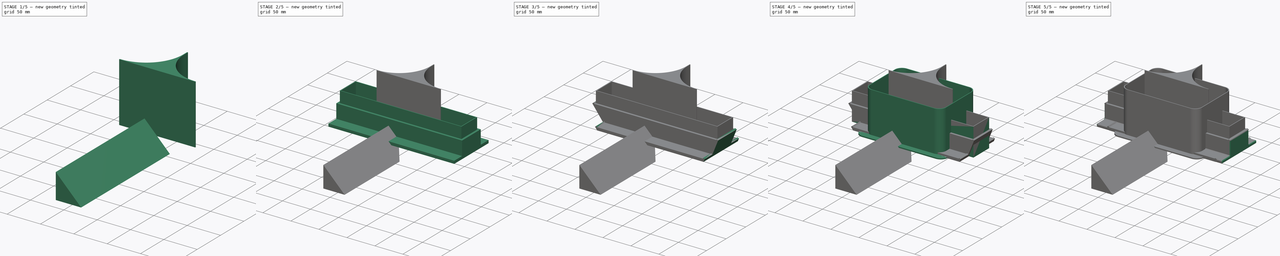
[diagram: build sequence overview — one tinted view per stage of 5, left to right]
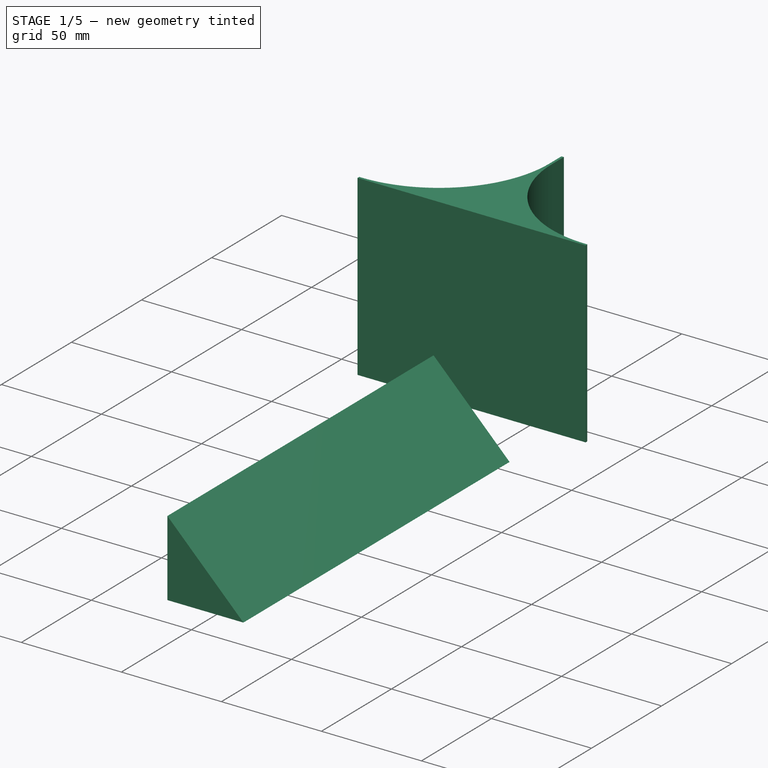
[diagram: stage 1 of 5 — iso view after this stage's code; geometry added in this stage tinted green]
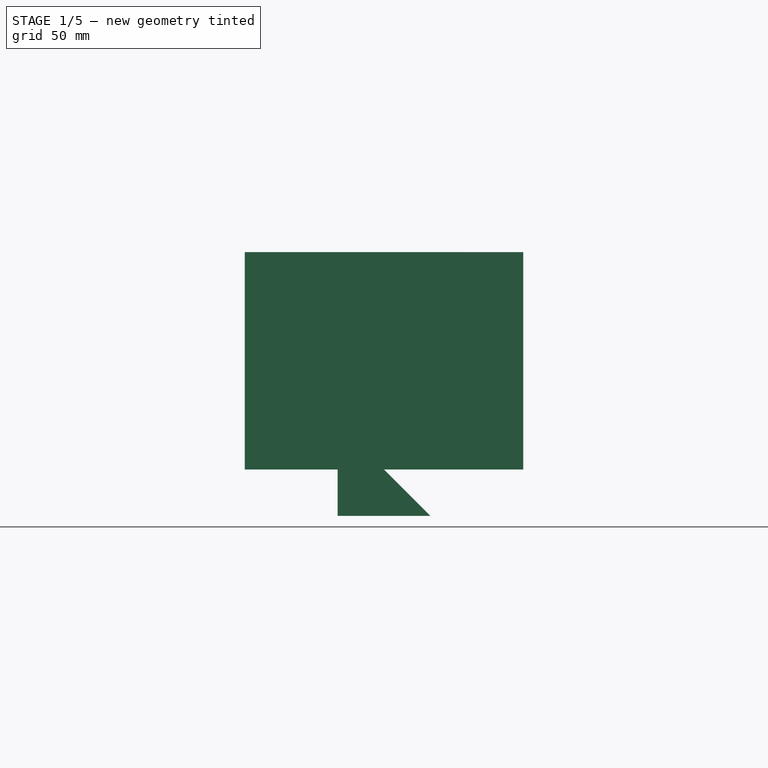
[diagram: stage 1 of 5 — front view after this stage's code; geometry added in this stage tinted green]
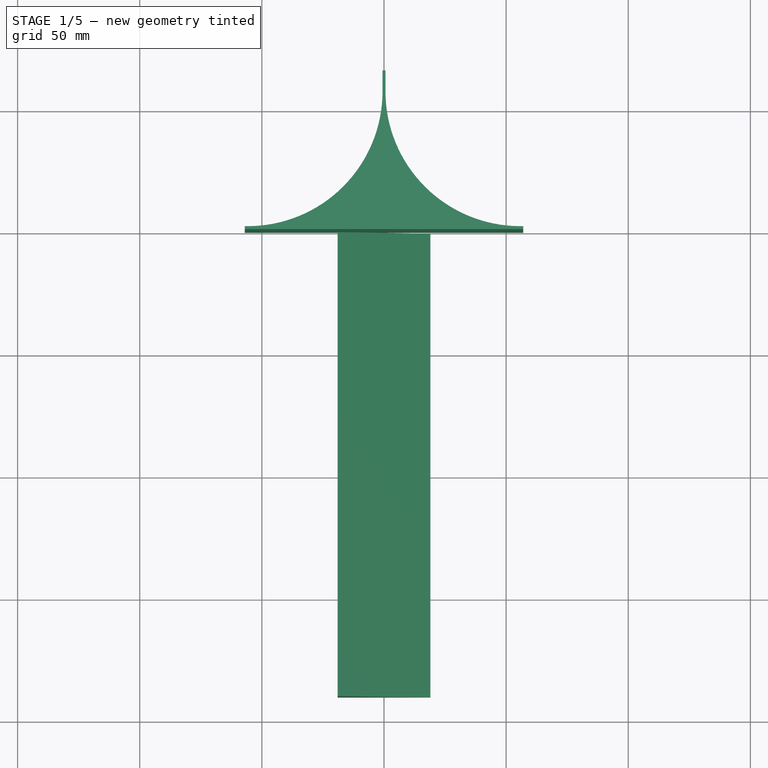
[diagram: stage 1 of 5 — top view after this stage's code; geometry added in this stage tinted green]
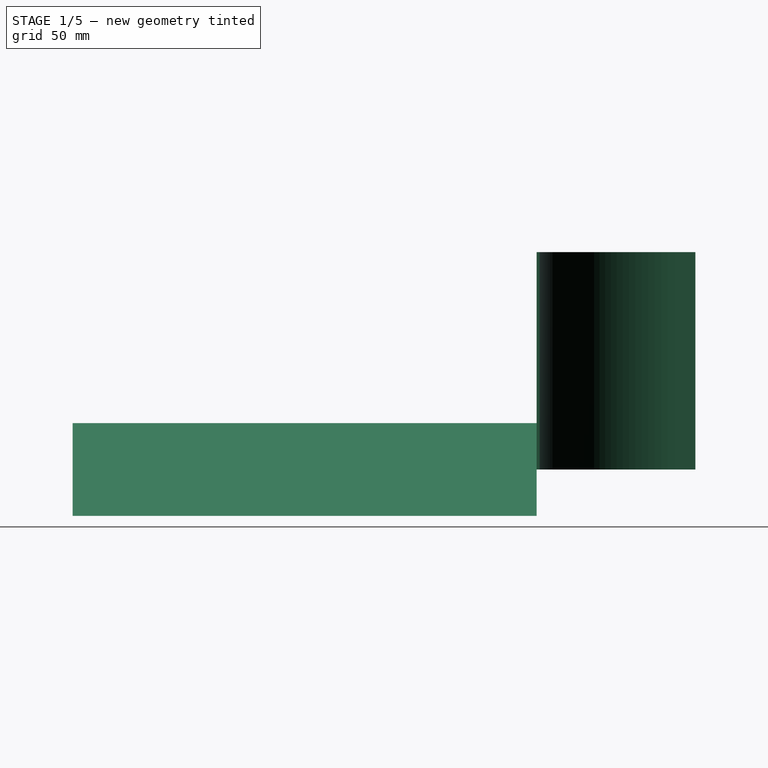
[diagram: stage 1 of 5 — right view after this stage's code; geometry added in this stage tinted green]
FCSTD DOCUMENT  (FreeCAD 0.20R29603 (Git))
Label: duct fix
License: All rights reserved
LicenseURL: http://en.wikipedia.org/wiki/All_rights_reserved
objects: Sketcher::SketchObject×15, PartDesign::Pad×12, PartDesign::Body×5, PartDesign::Pocket×3, Spreadsheet::Sheet×2, PartDesign::Chamfer×1, PartDesign::Mirrored×1
note: 53 computed .brp shape members not serialized (recipe doc carries the construction recipe); baked Part::Feature solids carry a one-line shape summary decoded from their .brp

FEATURE [PartDesign::Body] Body002  label="vent shoe001"
  Group = -> [Sketch008,Pad006,Sketch009,Pad007,Sketch010,Pad008,Sketch011,Pocket001,Sketch012,Pad009,Sketch013,Pad010]
  Origin = -> Origin002
  Tip = -> Pad010
FEATURE [Sketcher::SketchObject] Sketch014
  FullyConstrained = true
  MapMode = 5
  Support = -> [XY_Plane003]
  expr: Constraints[17] = <<f>>.wall
  expr: Constraints[2] = <<f>>.wall
  expr: Constraints[3] = <<f>>.wall / 2
  sketch-geometry (7):
    g0: LineSegment StartX=-57 StartY=0 StartZ=0 EndX=-57 EndY=1.2 EndZ=0
    g1: LineSegment StartX=-0.6 StartY=65 StartZ=0 EndX=-0.6 EndY=56.4 EndZ=0
    g2: LineSegment StartX=0 StartY=65 StartZ=0 EndX=0 EndY=0 EndZ=0
    g3: LineSegment StartX=0 StartY=0 StartZ=0 EndX=-57 EndY=0 EndZ=0
    g4: LineSegment StartX=0 StartY=65 StartZ=0 EndX=-0.6 EndY=65 EndZ=0
    g5: LineSegment StartX=-57 StartY=1.2 StartZ=0 EndX=-55.8 EndY=1.2 EndZ=0
    g6: ArcOfCircle CenterX=-55.8 CenterY=56.4 CenterZ=0 NormalX=0 NormalY=0 NormalZ=1 AngleXU=0 Radius=55.2 StartAngle=4.71239 EndAngle=6.28319
  constraints (20):
    c: Vertical(g0)
    c: PointOnObject(g2,g-2)
    c: DistanceY(g0,g0) = 1.2
    c: DistanceX(g1,g-1) = 0.6
    c: Vertical(g2)
    c: Coincident(g3,g2)
    c: Coincident(g3,g0)
    c: Horizontal(g3)
    c: DistanceY(g2,g2) = 65
    c: DistanceX(g3,g3) = 57
    c: Vertical(g1)
    c: Coincident(g4,g2)
    c: Coincident(g4,g1)
    c: Horizontal(g4)
    c: PointOnObject(g2,g-1)
    c: Coincident(g5,g0)
    c: Horizontal(g5)
    c: DistanceX(g5,g5) = 1.2
    c: Tangent(g6,g5) = -1.5708
    c: Tangent(g6,g1) = 1.5708
FEATURE [Sketcher::SketchObject] Sketch015
  AttachmentOffset = pos=(0,0,0) rot=(1,0,0;1.5708rad)
  FullyConstrained = true
  MapMode = 5
  Placement = pos=(0,0,0) rot=(1,0,0;1.5708rad)
  Support = -> [XY_Plane004]
  sketch-geometry (3):
    g0: LineSegment StartX=-19 StartY=-19 StartZ=0 EndX=19 EndY=-19 EndZ=0
    g1: LineSegment StartX=19 StartY=-19 StartZ=0 EndX=-19 EndY=19 EndZ=0
    g2: LineSegment StartX=-19 StartY=19 StartZ=0 EndX=-19 EndY=-19 EndZ=0
  constraints (8):
    c: Horizontal(g0)
    c: Coincident(g0,g1)
    c: Coincident(g1,g2)
    c: Coincident(g2,g0)
    c: Vertical(g2)
    c: DistanceY(g2,g2) = 38
    c: Equal(g2,g0)
    c: Symmetric(g1,g0,g-1)
FEATURE [PartDesign::Pad] Pad012
  Direction = (0,-1,2e-16)
  Length = 190
  Length2 = 10
  Profile = -> Sketch015
  ReferenceAxis = -> Sketch015 [N_Axis]
  Type = 0
FEATURE [PartDesign::Body] Body004  label="duct ramp"
  Group = -> [Sketch015,Pad012,Sketch016,Pocket002]
  Origin = -> Origin004
  Tip = -> Pocket002
FEATURE [PartDesign::Pad] Pad013
  Direction = (0,0,1)
  Length = 89
  Length2 = 10
  Profile = -> Sketch014
  ReferenceAxis = -> Sketch014 [N_Axis]
  Type = 0
FEATURE [PartDesign::Mirrored] Mirrored
  BaseFeature = -> Pad013
  MirrorPlane = -> Sketch014 [V_Axis]
  Originals = -> [Pad013]
  Refine = true
FEATURE [PartDesign::Body] Body003  label="air splitter"
  Group = -> [Sketch014,Pad013,Mirrored]
  Origin = -> Origin003
  Tip = -> Mirrored
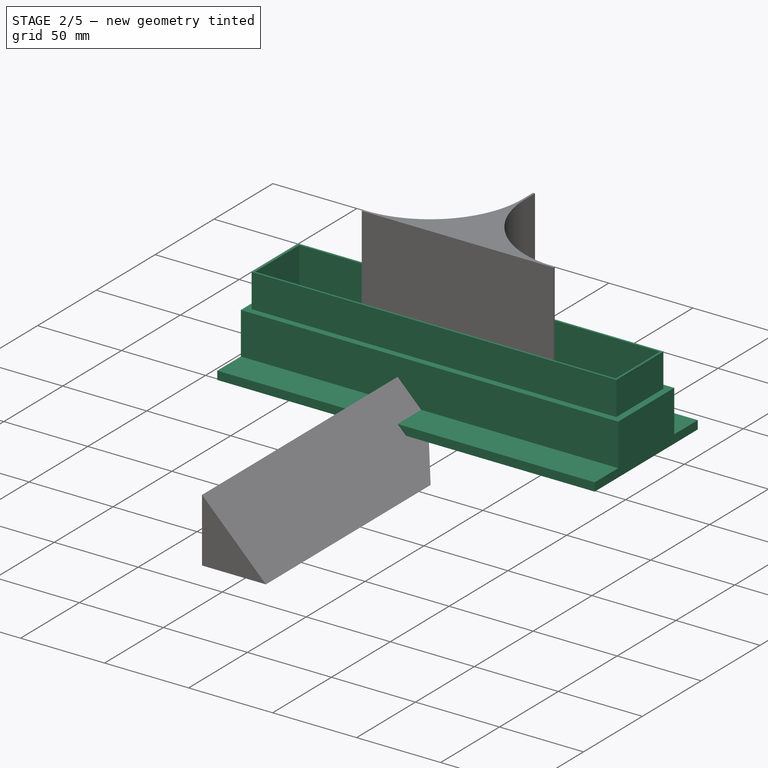
[diagram: stage 2 of 5 — iso view after this stage's code; geometry added in this stage tinted green]
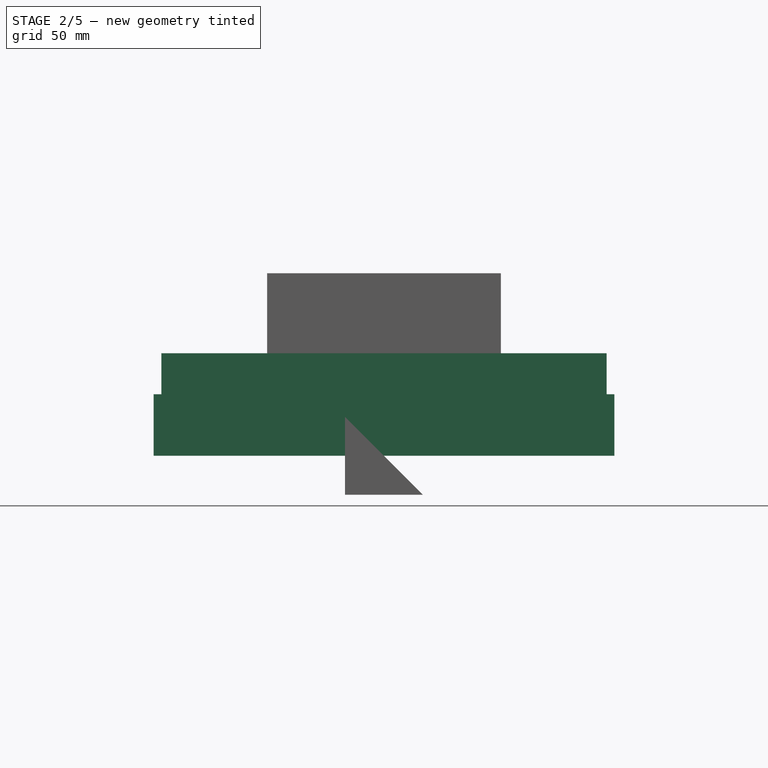
[diagram: stage 2 of 5 — front view after this stage's code; geometry added in this stage tinted green]
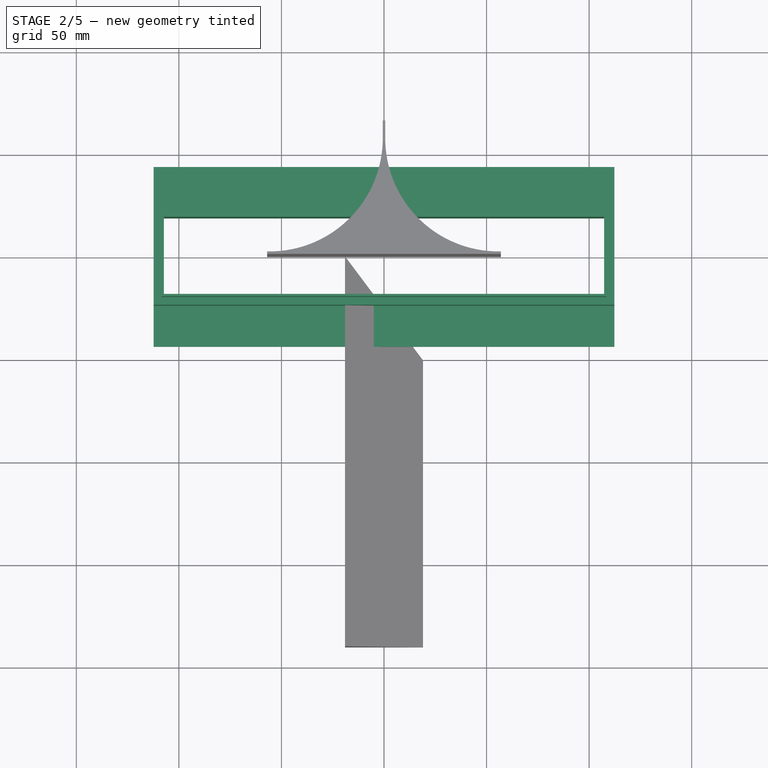
[diagram: stage 2 of 5 — top view after this stage's code; geometry added in this stage tinted green]
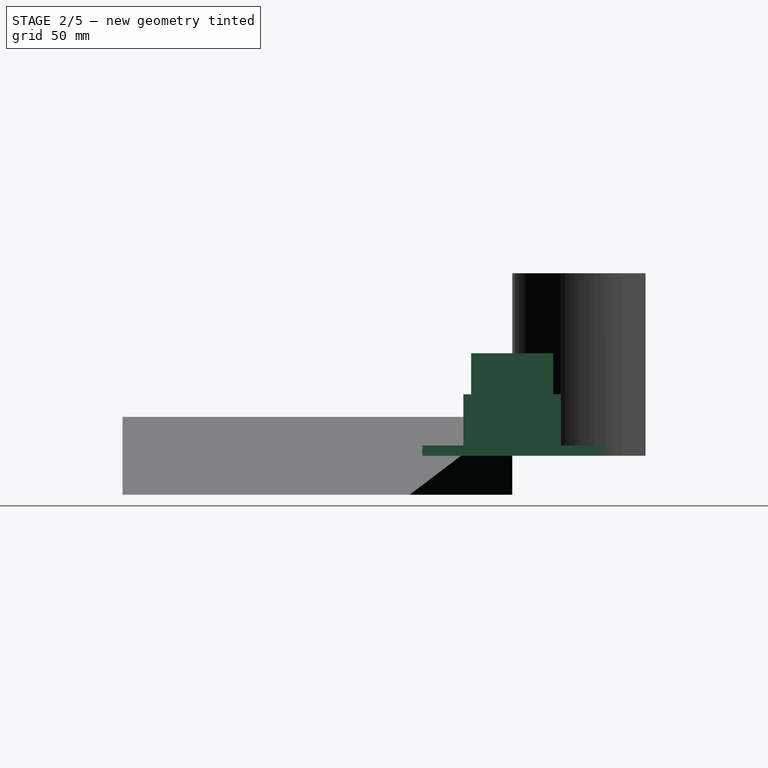
[diagram: stage 2 of 5 — right view after this stage's code; geometry added in this stage tinted green]
FEATURE [PartDesign::Body] Body  label="fan shoe"
  Group = -> [Sketch,Pad,Sketch006,Pad005,Sketch007,Pocket]
  Origin = -> Origin
  Tip = -> Pocket
FEATURE [Sketcher::SketchObject] Sketch008
  FullyConstrained = true
  MapMode = 5
  Support = -> [XY_Plane002]
  expr: Constraints[20] = <<v>>.inset
  expr: Constraints[21] = <<v>>.inset
  expr: Constraints[8] = <<v>>.inner_wide
  expr: Constraints[9] = <<v>>.inner_high
  sketch-geometry (8):
    g0: LineSegment StartX=-108.5 StartY=20 StartZ=0 EndX=108.5 EndY=20 EndZ=0
    g1: LineSegment StartX=108.5 StartY=20 StartZ=0 EndX=108.5 EndY=-20 EndZ=0
    g2: LineSegment StartX=108.5 StartY=-20 StartZ=0 EndX=-108.5 EndY=-20 EndZ=0
    g3: LineSegment StartX=-108.5 StartY=-20 StartZ=0 EndX=-108.5 EndY=20 EndZ=0
    g4: LineSegment StartX=-107.3 StartY=18.8 StartZ=0 EndX=107.3 EndY=18.8 EndZ=0
    g5: LineSegment StartX=107.3 StartY=18.8 StartZ=0 EndX=107.3 EndY=-18.8 EndZ=0
    g6: LineSegment StartX=107.3 StartY=-18.8 StartZ=0 EndX=-107.3 EndY=-18.8 EndZ=0
    g7: LineSegment StartX=-107.3 StartY=-18.8 StartZ=0 EndX=-107.3 EndY=18.8 EndZ=0
  constraints (22):
    c: Coincident(g0,g1)
    c: Coincident(g1,g2)
    c: Coincident(g2,g3)
    c: Coincident(g3,g0)
    c: Horizontal(g0)
    c: Horizontal(g2)
    c: Vertical(g1)
    c: Vertical(g3)
    c: DistanceX(g0,g0) = 217
    c: DistanceY(g1,g1) = 40
    c: Symmetric(g2,g0,g-1)
    c: Coincident(g4,g5)
    c: Coincident(g5,g6)
    c: Coincident(g6,g7)
    c: Coincident(g7,g4)
    c: Horizontal(g4)
    c: Horizontal(g6)
    c: Vertical(g5)
    c: Vertical(g7)
    c: Symmetric(g4,g6,g-1)
    c: DistanceY(g1,g5) = 1.2
    c: DistanceX(g5,g1) = 1.2
FEATURE [PartDesign::Pad] Pad006
  Direction = (0,0,1)
  Length = 50
  Length2 = 10
  Profile = -> Sketch008
  ReferenceAxis = -> Sketch008 [N_Axis]
  Type = 0
FEATURE [Sketcher::SketchObject] Sketch009
  ExternalGeometry = -> [Pad006]
  FullyConstrained = true
  MapMode = 5
  Support = -> [XY_Plane002]
  expr: Constraints[18] = <<v>>.wall
  expr: Constraints[19] = <<v>>.wall
  sketch-geometry (8):
    g0: LineSegment StartX=-107.3 StartY=18.8 StartZ=0 EndX=107.3 EndY=18.8 EndZ=0
    g1: LineSegment StartX=107.3 StartY=18.8 StartZ=0 EndX=107.3 EndY=-18.8 EndZ=0
    g2: LineSegment StartX=107.3 StartY=-18.8 StartZ=0 EndX=-107.3 EndY=-18.8 EndZ=0
    g3: LineSegment StartX=-107.3 StartY=-18.8 StartZ=0 EndX=-107.3 EndY=18.8 EndZ=0
    g4: LineSegment StartX=-112.3 StartY=23.8 StartZ=0 EndX=112.3 EndY=23.8 EndZ=0
    g5: LineSegment StartX=112.3 StartY=23.8 StartZ=0 EndX=112.3 EndY=-23.8 EndZ=0
    g6: LineSegment StartX=112.3 StartY=-23.8 StartZ=0 EndX=-112.3 EndY=-23.8 EndZ=0
    g7: LineSegment StartX=-112.3 StartY=-23.8 StartZ=0 EndX=-112.3 EndY=23.8 EndZ=0
  constraints (21):
    c: Coincident(g0,g1)
    c: Coincident(g1,g2)
    c: Coincident(g2,g3)
    c: Coincident(g3,g0)
    c: Horizontal(g0)
    c: Horizontal(g2)
    c: Vertical(g1)
    c: Vertical(g3)
    c: Coincident(g0,g-3)
    c: Coincident(g1,g-4)
    c: Coincident(g4,g5)
    c: Coincident(g5,g6)
    c: Coincident(g6,g7)
    c: Coincident(g7,g4)
    c: Horizontal(g4)
    c: Horizontal(g6)
    c: Vertical(g5)
    c: Vertical(g7)
    c: DistanceY(g5,g1) = 5
    c: DistanceX(g1,g5) = 5
    c: Symmetric(g4,g6,g-1)
FEATURE [PartDesign::Pad] Pad007
  BaseFeature = -> Pad006
  Direction = (0,0,1)
  Length = 30
  Length2 = 10
  Profile = -> Sketch009
  ReferenceAxis = -> Sketch009 [N_Axis]
  Type = 0
FEATURE [Sketcher::SketchObject] Sketch010
  ExternalGeometry = -> [Pad007]
  FullyConstrained = true
  MapMode = 5
  Support = -> [XY_Plane002]
  expr: Constraints[18] = <<v>>.flange
  sketch-geometry (8):
    g0: LineSegment StartX=-112.3 StartY=43.8 StartZ=0 EndX=112.3 EndY=43.8 EndZ=0
    g1: LineSegment StartX=112.3 StartY=43.8 StartZ=0 EndX=112.3 EndY=23.8 EndZ=0
    g2: LineSegment StartX=112.3 StartY=23.8 StartZ=0 EndX=-112.3 EndY=23.8 EndZ=0
    g3: LineSegment StartX=-112.3 StartY=23.8 StartZ=0 EndX=-112.3 EndY=43.8 EndZ=0
    g4: LineSegment StartX=-112.3 StartY=-23.8 StartZ=0 EndX=112.3 EndY=-23.8 EndZ=0
    g5: LineSegment StartX=112.3 StartY=-23.8 StartZ=0 EndX=112.3 EndY=-43.8 EndZ=0
    g6: LineSegment StartX=112.3 StartY=-43.8 StartZ=0 EndX=-112.3 EndY=-43.8 EndZ=0
    g7: LineSegment StartX=-112.3 StartY=-43.8 StartZ=0 EndX=-112.3 EndY=-23.8 EndZ=0
  constraints (20):
    c: Coincident(g0,g1)
    c: Coincident(g1,g2)
    c: Coincident(g2,g3)
    c: Coincident(g3,g0)
    c: Horizontal(g0)
    c: Vertical(g1)
    c: Vertical(g3)
    c: Coincident(g4,g5)
    c: Coincident(g5,g6)
    c: Coincident(g6,g7)
    c: Coincident(g7,g4)
    c: Horizontal(g6)
    c: Vertical(g5)
    c: Vertical(g7)
    c: Coincident(g4,g-4)
    c: Coincident(g-3,g1)
    c: Coincident(g4,g-4)
    c: Coincident(g2,g-3)
    c: DistanceY(g3,g3) = 20
    c: Equal(g3,g7)
FEATURE [PartDesign::Pad] Pad008
  BaseFeature = -> Pad007
  Direction = (0,0,1)
  Length = 5
  Length2 = 10
  Profile = -> Sketch010
  ReferenceAxis = -> Sketch010 [N_Axis]
  Refine = true
  Type = 0
  expr: Length = <<v>>.wall
FEATURE [Sketcher::SketchObject] Sketch016
  ExternalGeometry = -> [Sketch015]
  FullyConstrained = true
  MapMode = 5
  Support = -> [XY_Plane004]
  sketch-geometry (3):
    g0: LineSegment StartX=-19 StartY=0 StartZ=0 EndX=19 EndY=-4.4e-15 EndZ=0
    g1: LineSegment StartX=19 StartY=-4.4e-15 StartZ=0 EndX=19 EndY=-50 EndZ=0
    g2: LineSegment StartX=19 StartY=-50 StartZ=0 EndX=-19 EndY=0 EndZ=0
  constraints (7):
    c: Coincident(g-3,g0)
    c: Coincident(g0,g-3)
    c: Coincident(g0,g1)
    c: Coincident(g1,g2)
    c: Coincident(g2,g0)
    c: DistanceY(g1,g1) = 50
    c: Vertical(g1)
FEATURE [PartDesign::Pocket] Pocket002
  BaseFeature = -> Pad012
  Direction = (0,0,-1)
  Length = 5
  Length2 = 5
  Midplane = true
  Profile = -> Sketch016
  ReferenceAxis = -> Sketch016 [N_Axis]
  Type = 1
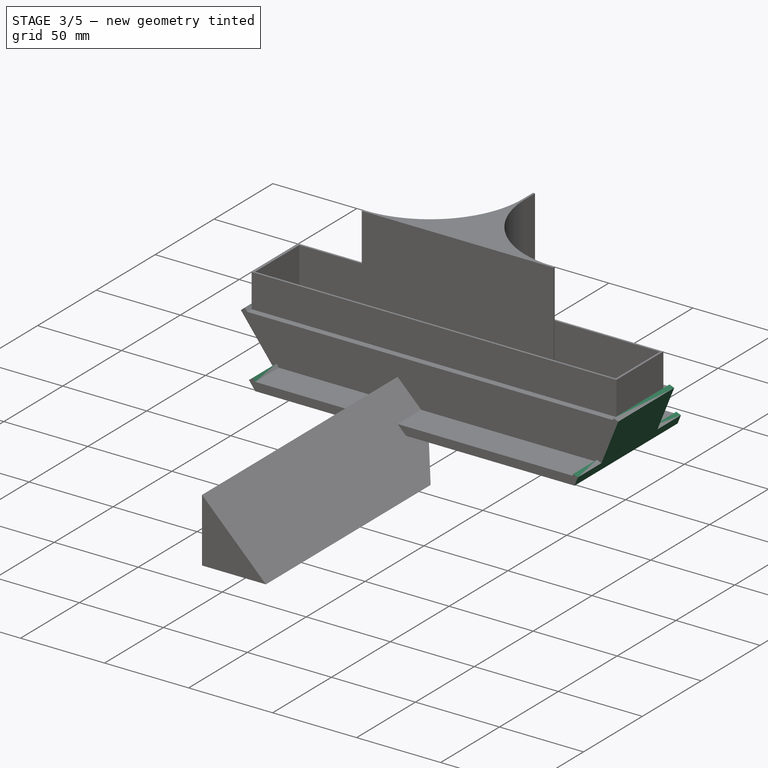
[diagram: stage 3 of 5 — iso view after this stage's code; geometry added in this stage tinted green]
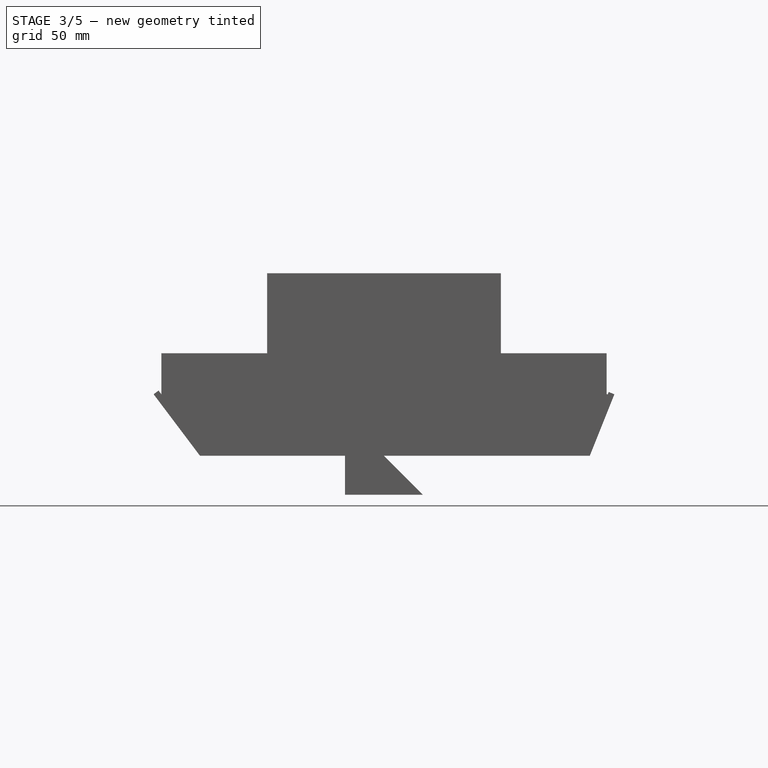
[diagram: stage 3 of 5 — front view after this stage's code; geometry added in this stage tinted green]
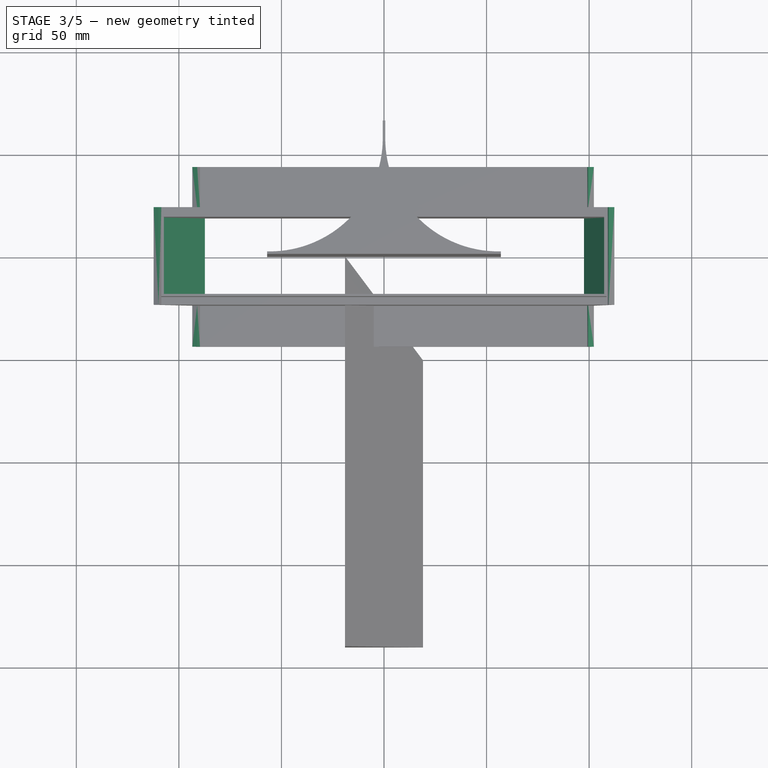
[diagram: stage 3 of 5 — top view after this stage's code; geometry added in this stage tinted green]
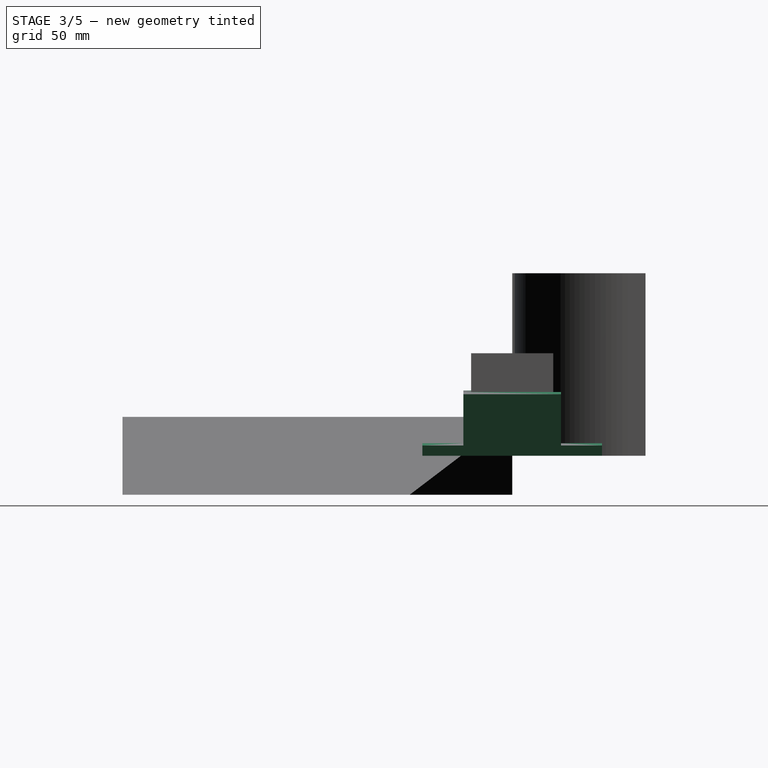
[diagram: stage 3 of 5 — right view after this stage's code; geometry added in this stage tinted green]
FEATURE [Sketcher::SketchObject] Sketch011
  ExternalGeometry = -> [Pad008]
  FullyConstrained = true
  MapMode = 5
  Placement = pos=(0,43.8,0) rot=(0,0.707107,0.707107;3.14159rad)
  Support = -> [Pad008]
  sketch-geometry (6):
    g0: LineSegment StartX=-112.3 StartY=30 StartZ=0 EndX=-100.3 EndY=0 EndZ=0
    g1: LineSegment StartX=-100.3 StartY=0 StartZ=0 EndX=-112.3 EndY=0 EndZ=0
    g2: LineSegment StartX=-112.3 StartY=0 StartZ=0 EndX=-112.3 EndY=30 EndZ=0
    g3: LineSegment StartX=112.3 StartY=30 StartZ=0 EndX=89.7 EndY=0 EndZ=0
    g4: LineSegment StartX=89.7 StartY=0 StartZ=0 EndX=112.3 EndY=0 EndZ=0
    g5: LineSegment StartX=112.3 StartY=0 StartZ=0 EndX=112.3 EndY=30 EndZ=0
  constraints (15):
    c: Coincident(g0,g-5)
    c: PointOnObject(g0,g-4)
    c: Coincident(g0,g1)
    c: Horizontal(g1)
    c: Coincident(g1,g2)
    c: Coincident(g2,g0)
    c: Vertical(g2)
    c: DistanceX(g1,g1) = 12
    c: Coincident(g-6,g3)
    c: Coincident(g3,g4)
    c: Coincident(g4,g-4)
    c: Coincident(g4,g5)
    c: Coincident(g5,g3)
    c: PointOnObject(g3,g-4)
    c: DistanceX(g0,g3) = 190
FEATURE [PartDesign::Pocket] Pocket001
  BaseFeature = -> Pad008
  Direction = (0,-1,2e-16)
  Length = 5
  Length2 = 5
  Profile = -> Sketch011
  ReferenceAxis = -> Sketch011 [N_Axis]
  Type = 1
FEATURE [Sketcher::SketchObject] Sketch012
  ExternalGeometry = -> [Pocket001]
  FullyConstrained = true
  MapMode = 5
  Placement = pos=(-57.2245,-9.3e-15,-43.1091) rot=(0.666864,-0.666864,-0.332545;2.49951rad)
  Support = -> [Pocket001]
  sketch-geometry (8):
    g0: LineSegment StartX=-43.8 StartY=60.2327 StartZ=0 EndX=-23.8 EndY=60.2327 EndZ=0
    g1: LineSegment StartX=-43.8 StartY=60.2327 StartZ=0 EndX=-43.8 EndY=53.9727 EndZ=0
    g2: LineSegment StartX=43.8 StartY=53.9727 StartZ=0 EndX=43.8 EndY=60.2327 EndZ=0
    g3: LineSegment StartX=43.8 StartY=60.2327 StartZ=0 EndX=23.8 EndY=60.2327 EndZ=0
    g4: LineSegment StartX=23.8 StartY=60.2327 StartZ=0 EndX=23.8 EndY=91.5328 EndZ=0
    g5: LineSegment StartX=23.8 StartY=91.5328 StartZ=0 EndX=-23.8 EndY=91.5328 EndZ=0
    g6: LineSegment StartX=-23.8 StartY=91.5328 StartZ=0 EndX=-23.8 EndY=60.2327 EndZ=0
    g7: LineSegment StartX=43.8 StartY=53.9727 StartZ=0 EndX=-43.8 EndY=53.9727 EndZ=0
  constraints (16):
    c: Coincident(g0,g-5)
    c: Coincident(g0,g-5)
    c: Coincident(g0,g1)
    c: Coincident(g1,g-6)
    c: Coincident(g2,g-8)
    c: Coincident(g2,g3)
    c: Coincident(g3,g-8)
    c: Coincident(g3,g4)
    c: Coincident(g4,g-3)
    c: Coincident(g4,g5)
    c: Coincident(g5,g-3)
    c: Coincident(g5,g6)
    c: Coincident(g6,g0)
    c: Coincident(g2,g-7)
    c: Coincident(g7,g2)
    c: Coincident(g7,g1)
FEATURE [PartDesign::Pad] Pad009
  BaseFeature = -> Pocket001
  Direction = (-0.79872,0,-0.601703)
  Length = 3
  Length2 = 10
  Profile = -> Sketch012
  ReferenceAxis = -> Sketch012 [N_Axis]
  Reversed = true
  Type = 0
FEATURE [Sketcher::SketchObject] Sketch013
  ExternalGeometry = -> [Pad009]
  FullyConstrained = true
  MapMode = 5
  Placement = pos=(86.4655,-7.5e-15,-34.5862) rot=(0.637788,0.637788,0.431803;2.32635rad)
  Support = -> [Pad009]
  sketch-geometry (8):
    g0: LineSegment StartX=-23.8 StartY=69.5615 StartZ=0 EndX=23.8 EndY=69.5615 EndZ=0
    g1: LineSegment StartX=23.8 StartY=69.5615 StartZ=0 EndX=23.8 EndY=42.6356 EndZ=0
    g2: LineSegment StartX=23.8 StartY=42.6356 StartZ=0 EndX=43.8 EndY=42.6356 EndZ=0
    g3: LineSegment StartX=43.8 StartY=42.6356 StartZ=0 EndX=43.8 EndY=37.2505 EndZ=0
    g4: LineSegment StartX=43.8 StartY=37.2505 StartZ=0 EndX=-43.8 EndY=37.2505 EndZ=0
    g5: LineSegment StartX=-43.8 StartY=37.2505 StartZ=0 EndX=-43.8 EndY=42.6356 EndZ=0
    g6: LineSegment StartX=-43.8 StartY=42.6356 StartZ=0 EndX=-23.8 EndY=42.6356 EndZ=0
    g7: LineSegment StartX=-23.8 StartY=42.6356 StartZ=0 EndX=-23.8 EndY=69.5615 EndZ=0
  constraints (16):
    c: Coincident(g-3,g0)
    c: Coincident(g0,g-3)
    c: Coincident(g0,g1)
    c: Coincident(g1,g-5)
    c: Coincident(g1,g2)
    c: Coincident(g2,g-5)
    c: Coincident(g2,g3)
    c: Coincident(g3,g-6)
    c: Coincident(g3,g4)
    c: Coincident(g4,g-7)
    c: Coincident(g4,g5)
    c: Coincident(g5,g-4)
    c: Coincident(g5,g6)
    c: Coincident(g6,g-4)
    c: Coincident(g6,g7)
    c: Coincident(g7,g0)
FEATURE [PartDesign::Pad] Pad010
  BaseFeature = -> Pad009
  Direction = (0.928477,-2e-16,-0.371391)
  Length = 3
  Length2 = 10
  Profile = -> Sketch013
  ReferenceAxis = -> Sketch013 [N_Axis]
  Refine = true
  Reversed = true
  Type = 0
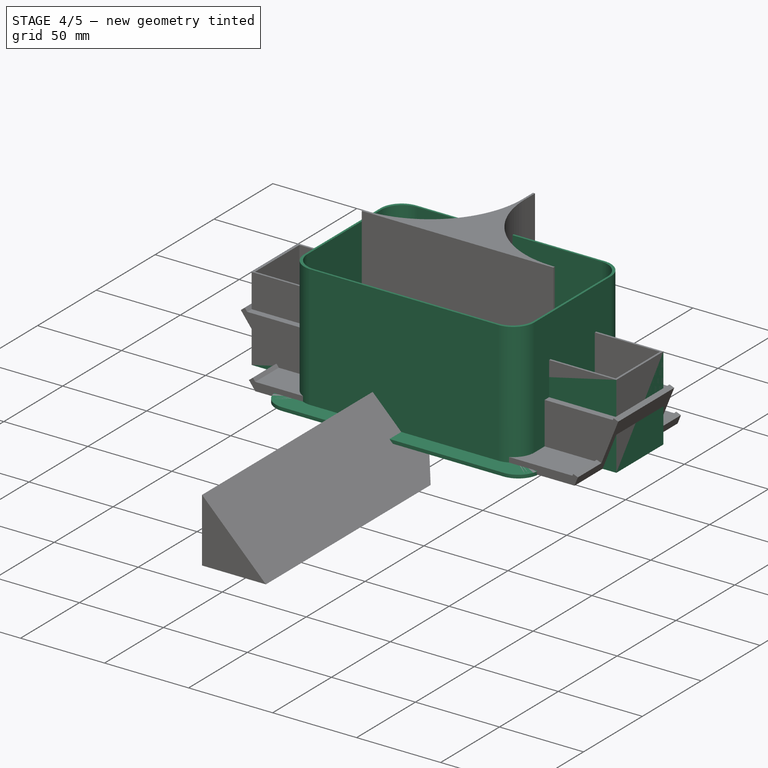
[diagram: stage 4 of 5 — iso view after this stage's code; geometry added in this stage tinted green]
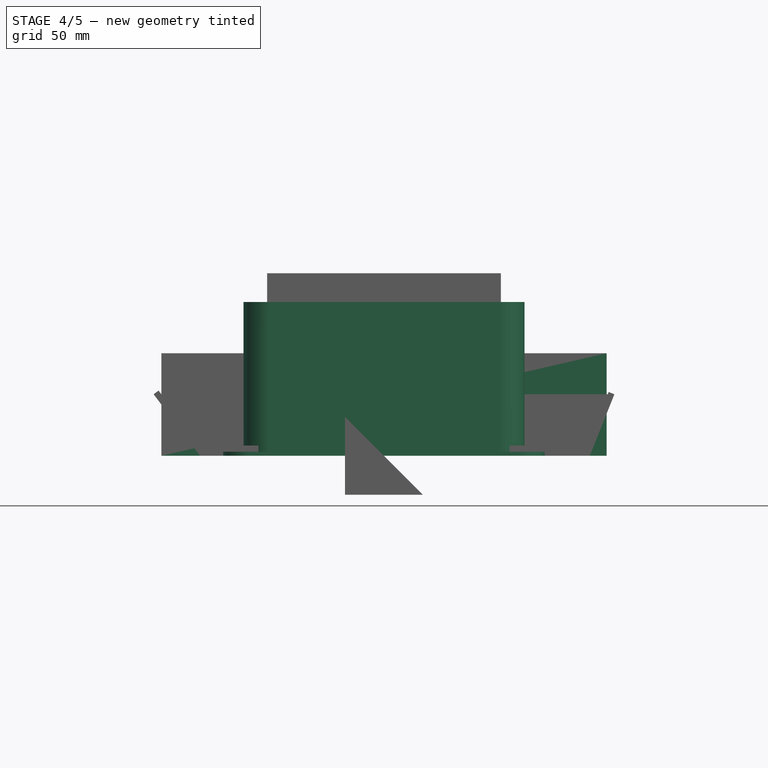
[diagram: stage 4 of 5 — front view after this stage's code; geometry added in this stage tinted green]
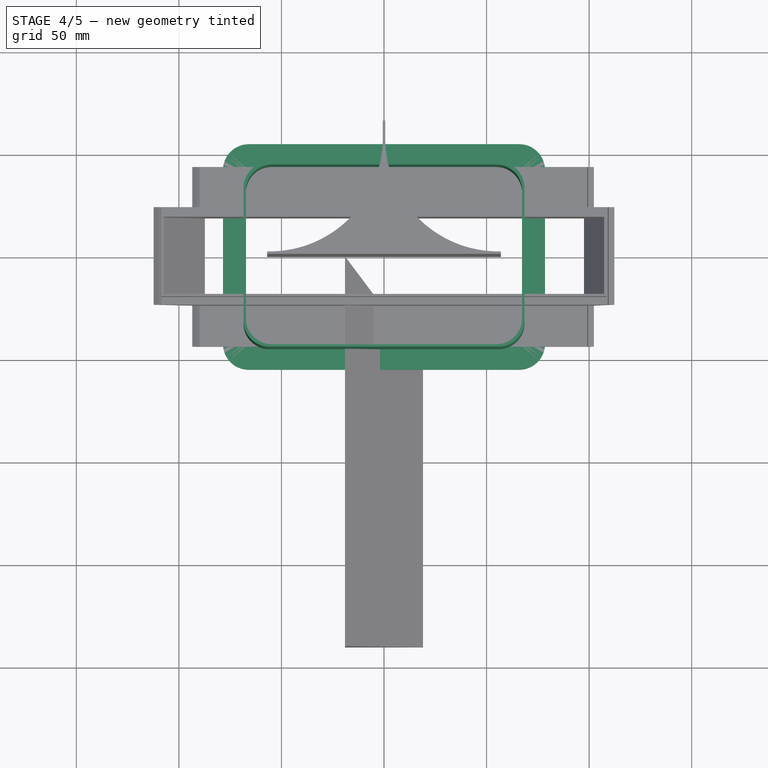
[diagram: stage 4 of 5 — top view after this stage's code; geometry added in this stage tinted green]
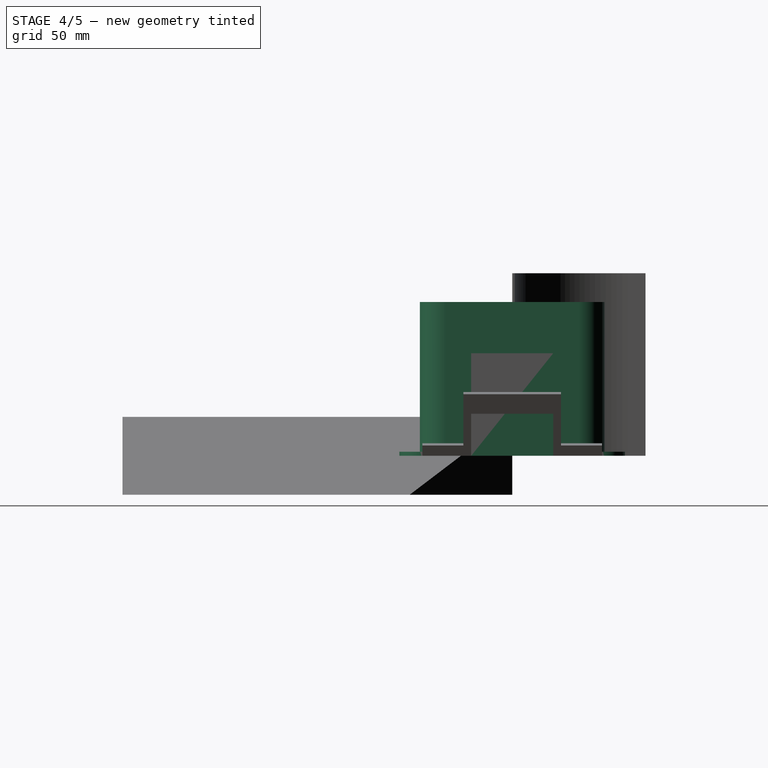
[diagram: stage 4 of 5 — right view after this stage's code; geometry added in this stage tinted green]
FEATURE [Spreadsheet::Sheet] Spreadsheet  label="v"
  cells = B2=mm; C2=input inches; A3=wall; B3(wall)=5; C3=0.125; A4=high; B4(high)==C4 * 25.4; C4=2; A5=wide; B5(wide)==C5 * 25.4; C5=9; A6=deep; B6(deep)==C6 * 25.4; C6=1; A7=flange; B7(flange)=20; C7=0.75; A9=inset; B9(inset)=1.2; A11=inner wide; B11(inner_wide)=217; A12=inner high; B12(inner_high)=40
FEATURE [Sketcher::SketchObject] Sketch003
  FullyConstrained = true
  MapMode = 5
  Support = -> [XY_Plane001]
  expr: Constraints[20] = <<v>>.inset
  expr: Constraints[21] = <<v>>.inset
  expr: Constraints[8] = <<v>>.inner_wide
  expr: Constraints[9] = <<v>>.inner_high
  sketch-geometry (8):
    g0: LineSegment StartX=-108.5 StartY=20 StartZ=0 EndX=108.5 EndY=20 EndZ=0
    g1: LineSegment StartX=108.5 StartY=20 StartZ=0 EndX=108.5 EndY=-20 EndZ=0
    g2: LineSegment StartX=108.5 StartY=-20 StartZ=0 EndX=-108.5 EndY=-20 EndZ=0
    g3: LineSegment StartX=-108.5 StartY=-20 StartZ=0 EndX=-108.5 EndY=20 EndZ=0
    g4: LineSegment StartX=-107.3 StartY=18.8 StartZ=0 EndX=107.3 EndY=18.8 EndZ=0
    g5: LineSegment StartX=107.3 StartY=18.8 StartZ=0 EndX=107.3 EndY=-18.8 EndZ=0
    g6: LineSegment StartX=107.3 StartY=-18.8 StartZ=0 EndX=-107.3 EndY=-18.8 EndZ=0
    g7: LineSegment StartX=-107.3 StartY=-18.8 StartZ=0 EndX=-107.3 EndY=18.8 EndZ=0
  constraints (22):
    c: Coincident(g0,g1)
    c: Coincident(g1,g2)
    c: Coincident(g2,g3)
    c: Coincident(g3,g0)
    c: Horizontal(g0)
    c: Horizontal(g2)
    c: Vertical(g1)
    c: Vertical(g3)
    c: DistanceX(g0,g0) = 217
    c: DistanceY(g1,g1) = 40
    c: Symmetric(g2,g0,g-1)
    c: Coincident(g4,g5)
    c: Coincident(g5,g6)
    c: Coincident(g6,g7)
    c: Coincident(g7,g4)
    c: Horizontal(g4)
    c: Horizontal(g6)
    c: Vertical(g5)
    c: Vertical(g7)
    c: Symmetric(g4,g6,g-1)
    c: DistanceY(g1,g5) = 1.2
    c: DistanceX(g5,g1) = 1.2
FEATURE [PartDesign::Pad] Pad002
  Direction = (0,0,1)
  Length = 50
  Length2 = 10
  Profile = -> Sketch003
  ReferenceAxis = -> Sketch003 [N_Axis]
  Type = 0
FEATURE [PartDesign::Body] Body001  label="vent shoe"
  Group = -> [Sketch003,Pad002,Sketch004,Pad003,Sketch005,Pad004,Chamfer]
  Origin = -> Origin001
  Tip = -> Chamfer
FEATURE [Sketcher::SketchObject] Sketch
  FullyConstrained = true
  MapMode = 5
  Support = -> [XY_Plane]
  expr: Constraints[23] = <<f>>.inner_radius
  expr: Constraints[25] = <<f>>.inner_wide
  expr: Constraints[26] = <<f>>.inner_high
  sketch-geometry (12):
    g0: LineSegment StartX=55.9 StartY=45 StartZ=0 EndX=-55.9 EndY=45 EndZ=0
    g1: LineSegment StartX=-68.5 StartY=32.4 StartZ=0 EndX=-68.5 EndY=-32.4 EndZ=0
    g2: LineSegment StartX=-55.9 StartY=-45 StartZ=0 EndX=55.9 EndY=-45 EndZ=0
    g3: LineSegment StartX=68.5 StartY=-32.4 StartZ=0 EndX=68.5 EndY=32.4 EndZ=0
    g4: ArcOfCircle CenterX=-55.9 CenterY=32.4 CenterZ=0 NormalX=0 NormalY=0 NormalZ=1 AngleXU=0 Radius=12.6 StartAngle=1.5708 EndAngle=3.14159
    g5: GeomPoint X=-68.5 Y=45 Z=0
    g6: ArcOfCircle CenterX=-55.9 CenterY=-32.4 CenterZ=0 NormalX=0 NormalY=0 NormalZ=1 AngleXU=0 Radius=12.6 StartAngle=3.14159 EndAngle=4.71239
    g7: GeomPoint X=-68.5 Y=-45 Z=0
    g8: ArcOfCircle CenterX=55.9 CenterY=-32.4 CenterZ=0 NormalX=0 NormalY=0 NormalZ=1 AngleXU=0 Radius=12.6 StartAngle=4.71239 EndAngle=6.28319
    g9: GeomPoint X=68.5 Y=-45 Z=0
    g10: ArcOfCircle CenterX=55.9 CenterY=32.4 CenterZ=0 NormalX=0 NormalY=0 NormalZ=1 AngleXU=0 Radius=12.6 StartAngle=0 EndAngle=1.5708
    g11: GeomPoint X=68.5 Y=45 Z=0
  constraints (27):
    c: Horizontal(g0)
    c: Horizontal(g2)
    c: Vertical(g1)
    c: Vertical(g3)
    c: PointOnObject(g5,g0)
    c: PointOnObject(g5,g1)
    c: Tangent(g0,g4) = -1.5708
    c: Tangent(g1,g4) = -1.5708
    c: PointOnObject(g7,g1)
    c: PointOnObject(g7,g2)
    c: Tangent(g1,g6) = -1.5708
    c: Tangent(g2,g6) = -1.5708
    c: PointOnObject(g9,g2)
    c: PointOnObject(g9,g3)
    c: Tangent(g2,g8) = -1.5708
    c: Tangent(g3,g8) = -1.5708
    c: PointOnObject(g11,g3)
    c: PointOnObject(g11,g0)
    c: Tangent(g3,g10) = -1.5708
    c: Tangent(g0,g10) = -1.5708
    c: Equal(g4,g10)
    c: Equal(g4,g8)
    c: Equal(g4,g6)
    c: Radius(g4) = 12.6
    c: Symmetric(g8,g4,g-1)
    c: DistanceX(g1,g3) = 137
    c: DistanceY(g2,g0) = 90
FEATURE [Spreadsheet::Sheet] Spreadsheet001  label="f"
  cells = A1=inner radius; B1(inner_radius)=12.6; A2=inner wide; B2(inner_wide)=137; A3=inner high; B3(inner_high)=90; A5=wall; B5(wall)=1.2; A6=height; B6(height)=75; A7=flange; B7(flange)=20; A8=flange thickness; B8(flange_thickness)=2; A10=splitter height; B10(splitter_height)=100; A11=splitter base; B11(splitter_base)=60; A12=foam thickness; B12(foam_thickness)=25.4
FEATURE [PartDesign::Pad] Pad
  Direction = (0,0,1)
  Length = 75
  Length2 = 10
  Profile = -> Sketch
  ReferenceAxis = -> Sketch [N_Axis]
  Type = 0
  expr: Length = <<f>>.height
FEATURE [Sketcher::SketchObject] Sketch006
  FullyConstrained = true
  MapMode = 5
  Support = -> [XY_Plane]
  expr: Constraints[26] = <<f>>.inner_radius
  expr: Constraints[5] = <<f>>.inner_wide + <<f>>.flange
  expr: Constraints[6] = <<f>>.inner_high + <<f>>.flange
  sketch-geometry (12):
    g0: LineSegment StartX=-65.9 StartY=55 StartZ=0 EndX=65.9 EndY=55 EndZ=0
    g1: LineSegment StartX=78.5 StartY=42.4 StartZ=0 EndX=78.5 EndY=-42.4 EndZ=0
    g2: LineSegment StartX=65.9 StartY=-55 StartZ=0 EndX=-65.9 EndY=-55 EndZ=0
    g3: LineSegment StartX=-78.5 StartY=-42.4 StartZ=0 EndX=-78.5 EndY=42.4 EndZ=0
    g4: ArcOfCircle CenterX=-65.9 CenterY=42.4 CenterZ=0 NormalX=0 NormalY=0 NormalZ=1 AngleXU=0 Radius=12.6 StartAngle=1.5708 EndAngle=3.14159
    g5: GeomPoint X=-78.5 Y=55 Z=0
    g6: ArcOfCircle CenterX=65.9 CenterY=42.4 CenterZ=0 NormalX=0 NormalY=0 NormalZ=1 AngleXU=0 Radius=12.6 StartAngle=0 EndAngle=1.5708
    g7: GeomPoint X=78.5 Y=55 Z=0
    g8: ArcOfCircle CenterX=-65.9 CenterY=-42.4 CenterZ=0 NormalX=0 NormalY=0 NormalZ=1 AngleXU=0 Radius=12.6 StartAngle=3.14159 EndAngle=4.71239
    g9: GeomPoint X=-78.5 Y=-55 Z=0
    g10: ArcOfCircle CenterX=65.9 CenterY=-42.4 CenterZ=0 NormalX=0 NormalY=0 NormalZ=1 AngleXU=0 Radius=12.6 StartAngle=4.71239 EndAngle=6.28319
    g11: GeomPoint X=78.5 Y=-55 Z=0
  constraints (27):
    c: Horizontal(g0)
    c: Horizontal(g2)
    c: Vertical(g1)
    c: Vertical(g3)
    c: Symmetric(g9,g7,g-1)
    c: DistanceX(g5,g7) = 157
    c: DistanceY(g11,g7) = 110
    c: PointOnObject(g5,g0)
    c: PointOnObject(g5,g3)
    c: Tangent(g0,g4) = 1.5708
    c: Tangent(g3,g4) = 1.5708
    c: PointOnObject(g7,g0)
    c: PointOnObject(g7,g1)
    c: Tangent(g0,g6) = 1.5708
    c: Tangent(g1,g6) = 1.5708
    c: PointOnObject(g9,g2)
    c: PointOnObject(g9,g3)
    c: Tangent(g2,g8) = 1.5708
    c: Tangent(g3,g8) = 1.5708
    c: PointOnObject(g11,g2)
    c: PointOnObject(g11,g1)
    c: Tangent(g2,g10) = 1.5708
    c: Tangent(g1,g10) = 1.5708
    c: Equal(g6,g10)
    c: Equal(g6,g8)
    c: Equal(g6,g4)
    c: Radius(g6) = 12.6
FEATURE [PartDesign::Pad] Pad005
  BaseFeature = -> Pad
  Direction = (0,0,1)
  Length = 2
  Length2 = 10
  Profile = -> Sketch006
  ReferenceAxis = -> Sketch006 [N_Axis]
  Type = 0
  expr: Length = <<f>>.flange_thickness
FEATURE [Sketcher::SketchObject] Sketch007
  FullyConstrained = true
  MapMode = 5
  Support = -> [XY_Plane]
  expr: Constraints[20] = <<f>>.inner_high - 2 * Spreadsheet001.wall
  expr: Constraints[21] = <<f>>.inner_wide - 2 * Spreadsheet001.wall
  expr: Constraints[25] = <<f>>.inner_radius
  sketch-geometry (12):
    g0: LineSegment StartX=-54.7 StartY=43.8 StartZ=0 EndX=54.7 EndY=43.8 EndZ=0
    g1: LineSegment StartX=67.3 StartY=31.2 StartZ=0 EndX=67.3 EndY=-31.2 EndZ=0
    g2: LineSegment StartX=54.7 StartY=-43.8 StartZ=0 EndX=-54.7 EndY=-43.8 EndZ=0
    g3: LineSegment StartX=-67.3 StartY=-31.2 StartZ=0 EndX=-67.3 EndY=31.2 EndZ=0
    g4: ArcOfCircle CenterX=-54.7 CenterY=31.2 CenterZ=0 NormalX=0 NormalY=0 NormalZ=1 AngleXU=0 Radius=12.6 StartAngle=1.5708 EndAngle=3.14159
    g5: GeomPoint X=-67.3 Y=43.8 Z=0
    g6: ArcOfCircle CenterX=54.7 CenterY=-31.2 CenterZ=0 NormalX=0 NormalY=0 NormalZ=1 AngleXU=0 Radius=12.6 StartAngle=4.71239 EndAngle=6.28319
    g7: GeomPoint X=67.3 Y=-43.8 Z=0
    g8: ArcOfCircle CenterX=54.7 CenterY=31.2 CenterZ=0 NormalX=0 NormalY=0 NormalZ=1 AngleXU=0 Radius=12.6 StartAngle=-9e-16 EndAngle=1.5708
    g9: GeomPoint X=67.3 Y=43.8 Z=0
    g10: ArcOfCircle CenterX=-54.7 CenterY=-31.2 CenterZ=0 NormalX=0 NormalY=0 NormalZ=1 AngleXU=0 Radius=12.6 StartAngle=3.14159 EndAngle=4.71239
    g11: GeomPoint X=-67.3 Y=-43.8 Z=0
  constraints (27):
    c: Horizontal(g0)
    c: Horizontal(g2)
    c: Vertical(g1)
    c: Vertical(g3)
    c: PointOnObject(g5,g3)
    c: PointOnObject(g5,g0)
    c: Tangent(g3,g4) = 1.5708
    c: Tangent(g0,g4) = 1.5708
    c: PointOnObject(g7,g1)
    c: PointOnObject(g7,g2)
    c: Tangent(g1,g6) = 1.5708
    c: Tangent(g2,g6) = 1.5708
    c: PointOnObject(g9,g0)
    c: PointOnObject(g9,g1)
    c: Tangent(g0,g8) = 1.5708
    c: Tangent(g1,g8) = 1.5708
    c: PointOnObject(g11,g2)
    c: PointOnObject(g11,g3)
    c: Tangent(g2,g10) = 1.5708
    c: Tangent(g3,g10) = 1.5708
    c: DistanceY(g2,g0) = 87.6
    c: DistanceX(g3,g1) = 134.6
    c: Equal(g6,g8)
    c: Equal(g6,g4)
    c: Equal(g6,g10)
    c: Radius(g6) = 12.6
    c: Symmetric(g8,g10,g-1)
FEATURE [PartDesign::Pocket] Pocket
  BaseFeature = -> Pad005
  Direction = (0,0,-1)
  Length = 5
  Length2 = 5
  Profile = -> Sketch007
  ReferenceAxis = -> Sketch007 [N_Axis]
  Reversed = true
  Type = 1
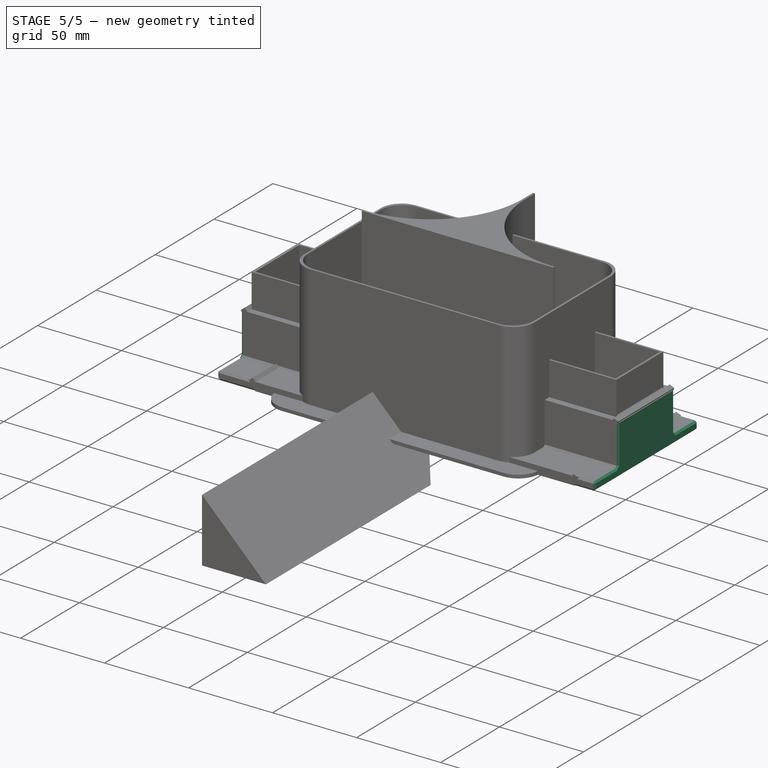
[diagram: stage 5 of 5 — iso view after this stage's code; geometry added in this stage tinted green]
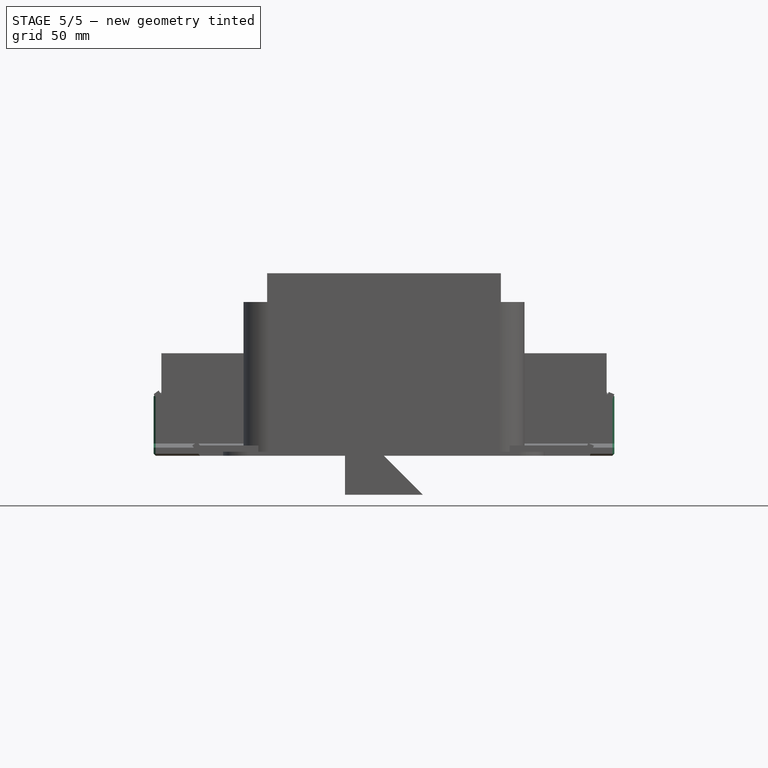
[diagram: stage 5 of 5 — front view after this stage's code; geometry added in this stage tinted green]
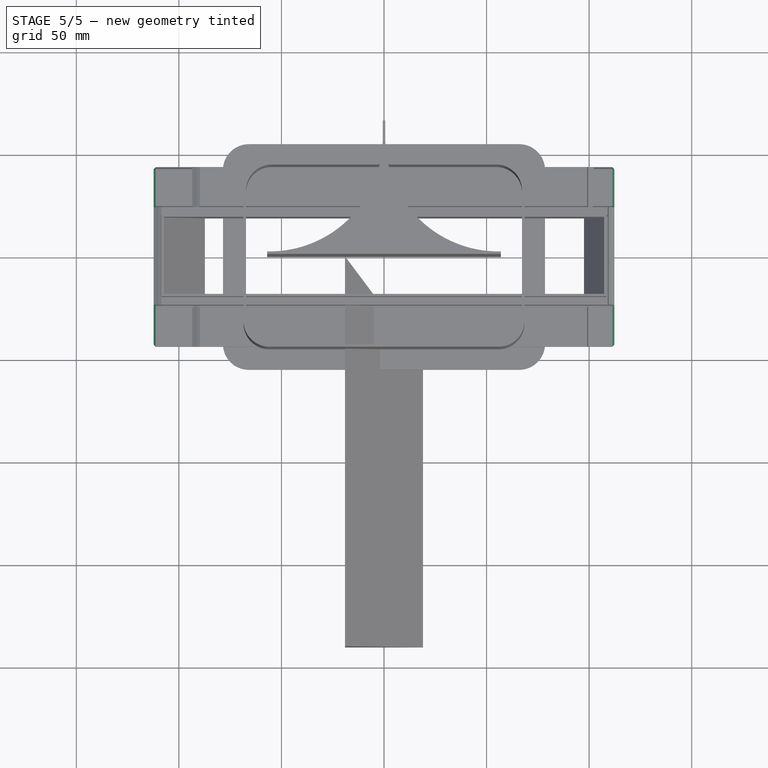
[diagram: stage 5 of 5 — top view after this stage's code; geometry added in this stage tinted green]
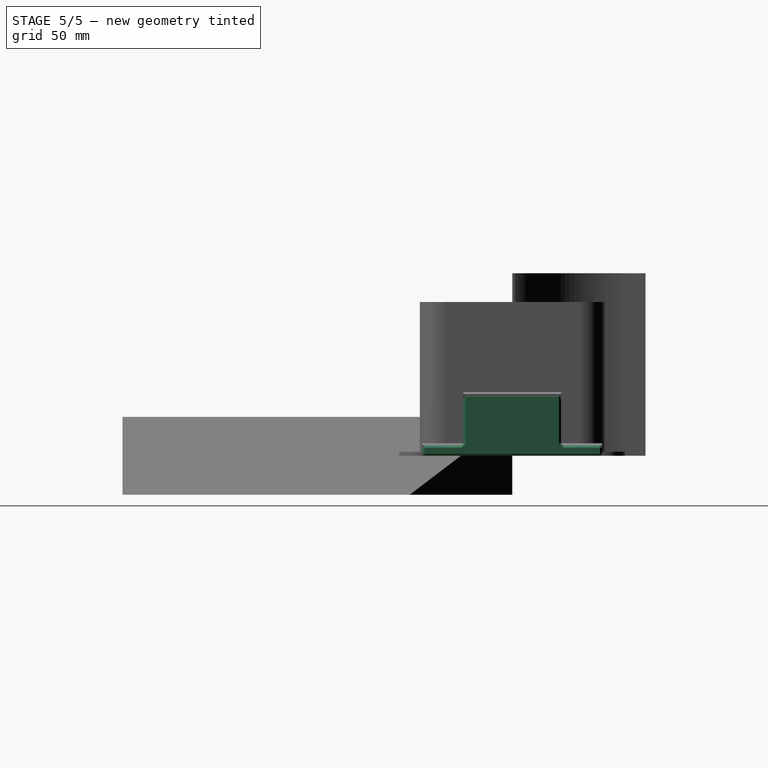
[diagram: stage 5 of 5 — right view after this stage's code; geometry added in this stage tinted green]
FEATURE [Sketcher::SketchObject] Sketch004
  ExternalGeometry = -> [Pad002]
  FullyConstrained = true
  MapMode = 5
  Support = -> [XY_Plane001]
  expr: Constraints[18] = <<v>>.wall
  expr: Constraints[19] = <<v>>.wall
  sketch-geometry (8):
    g0: LineSegment StartX=-107.3 StartY=18.8 StartZ=0 EndX=107.3 EndY=18.8 EndZ=0
    g1: LineSegment StartX=107.3 StartY=18.8 StartZ=0 EndX=107.3 EndY=-18.8 EndZ=0
    g2: LineSegment StartX=107.3 StartY=-18.8 StartZ=0 EndX=-107.3 EndY=-18.8 EndZ=0
    g3: LineSegment StartX=-107.3 StartY=-18.8 StartZ=0 EndX=-107.3 EndY=18.8 EndZ=0
    g4: LineSegment StartX=-112.3 StartY=23.8 StartZ=0 EndX=112.3 EndY=23.8 EndZ=0
    g5: LineSegment StartX=112.3 StartY=23.8 StartZ=0 EndX=112.3 EndY=-23.8 EndZ=0
    g6: LineSegment StartX=112.3 StartY=-23.8 StartZ=0 EndX=-112.3 EndY=-23.8 EndZ=0
    g7: LineSegment StartX=-112.3 StartY=-23.8 StartZ=0 EndX=-112.3 EndY=23.8 EndZ=0
  constraints (21):
    c: Coincident(g0,g1)
    c: Coincident(g1,g2)
    c: Coincident(g2,g3)
    c: Coincident(g3,g0)
    c: Horizontal(g0)
    c: Horizontal(g2)
    c: Vertical(g1)
    c: Vertical(g3)
    c: Coincident(g0,g-3)
    c: Coincident(g1,g-4)
    c: Coincident(g4,g5)
    c: Coincident(g5,g6)
    c: Coincident(g6,g7)
    c: Coincident(g7,g4)
    c: Horizontal(g4)
    c: Horizontal(g6)
    c: Vertical(g5)
    c: Vertical(g7)
    c: DistanceY(g5,g1) = 5
    c: DistanceX(g1,g5) = 5
    c: Symmetric(g4,g6,g-1)
FEATURE [PartDesign::Pad] Pad003
  BaseFeature = -> Pad002
  Direction = (0,0,1)
  Length = 30
  Length2 = 10
  Profile = -> Sketch004
  ReferenceAxis = -> Sketch004 [N_Axis]
  Type = 0
FEATURE [Sketcher::SketchObject] Sketch005
  ExternalGeometry = -> [Pad003]
  FullyConstrained = true
  MapMode = 5
  Support = -> [XY_Plane001]
  expr: Constraints[18] = <<v>>.flange
  sketch-geometry (8):
    g0: LineSegment StartX=-112.3 StartY=43.8 StartZ=0 EndX=112.3 EndY=43.8 EndZ=0
    g1: LineSegment StartX=112.3 StartY=43.8 StartZ=0 EndX=112.3 EndY=23.8 EndZ=0
    g2: LineSegment StartX=112.3 StartY=23.8 StartZ=0 EndX=-112.3 EndY=23.8 EndZ=0
    g3: LineSegment StartX=-112.3 StartY=23.8 StartZ=0 EndX=-112.3 EndY=43.8 EndZ=0
    g4: LineSegment StartX=-112.3 StartY=-23.8 StartZ=0 EndX=112.3 EndY=-23.8 EndZ=0
    g5: LineSegment StartX=112.3 StartY=-23.8 StartZ=0 EndX=112.3 EndY=-43.8 EndZ=0
    g6: LineSegment StartX=112.3 StartY=-43.8 StartZ=0 EndX=-112.3 EndY=-43.8 EndZ=0
    g7: LineSegment StartX=-112.3 StartY=-43.8 StartZ=0 EndX=-112.3 EndY=-23.8 EndZ=0
  constraints (20):
    c: Coincident(g0,g1)
    c: Coincident(g1,g2)
    c: Coincident(g2,g3)
    c: Coincident(g3,g0)
    c: Horizontal(g0)
    c: Vertical(g1)
    c: Vertical(g3)
    c: Coincident(g4,g5)
    c: Coincident(g5,g6)
    c: Coincident(g6,g7)
    c: Coincident(g7,g4)
    c: Horizontal(g6)
    c: Vertical(g5)
    c: Vertical(g7)
    c: Coincident(g4,g-4)
    c: Coincident(g-3,g1)
    c: Coincident(g4,g-4)
    c: Coincident(g2,g-3)
    c: DistanceY(g3,g3) = 20
    c: Equal(g3,g7)
FEATURE [PartDesign::Pad] Pad004
  BaseFeature = -> Pad003
  Direction = (0,0,1)
  Length = 5
  Length2 = 10
  Profile = -> Sketch005
  ReferenceAxis = -> Sketch005 [N_Axis]
  Refine = true
  Type = 0
  expr: Length = <<v>>.wall
FEATURE [PartDesign::Chamfer] Chamfer
  Angle = 45
  Base = -> Pad004 [Face13,Face6,Face2,Face19,Face11,Face18,Face8,Face9]
  BaseFeature = -> Pad004
  ChamferType = 0
  FlipDirection = false
  Size = 1
  Size2 = 1
  SupportTransform = false
  UseAllEdges = false
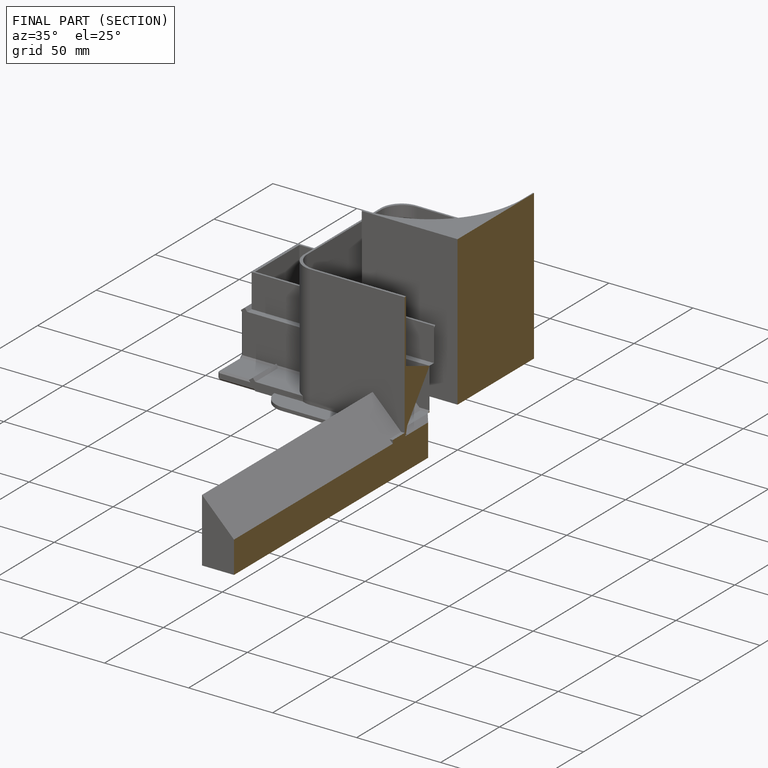
[diagram: finished part — half-section view (interior)]
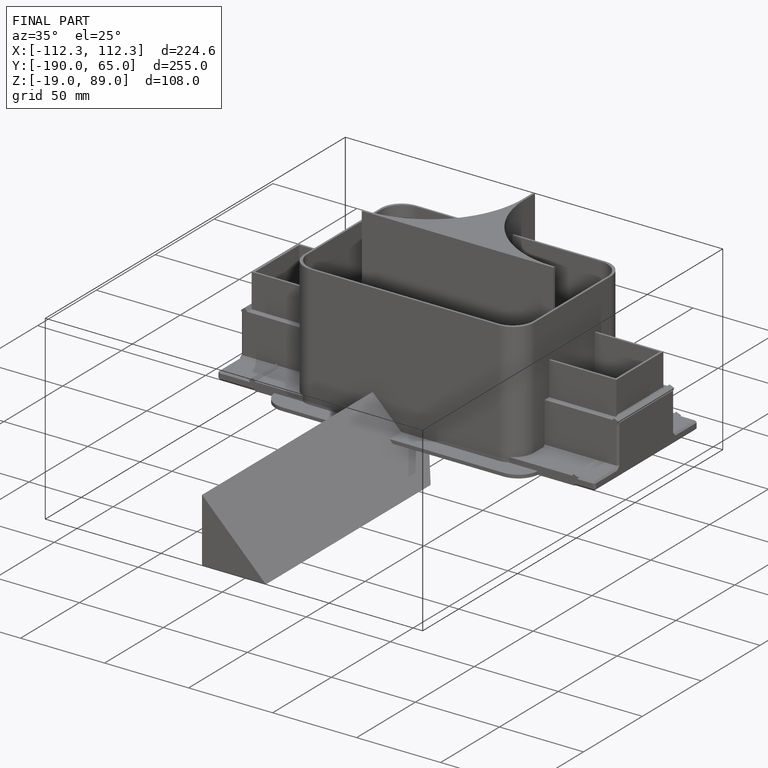
[diagram: finished part — iso view with bounding-box wireframe]
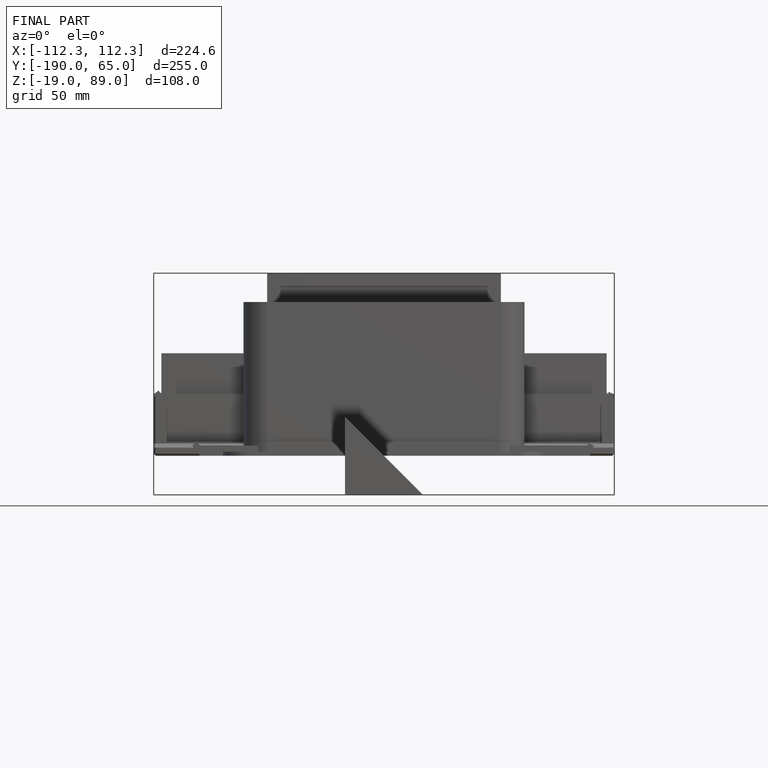
[diagram: finished part — front view with bounding-box wireframe]
